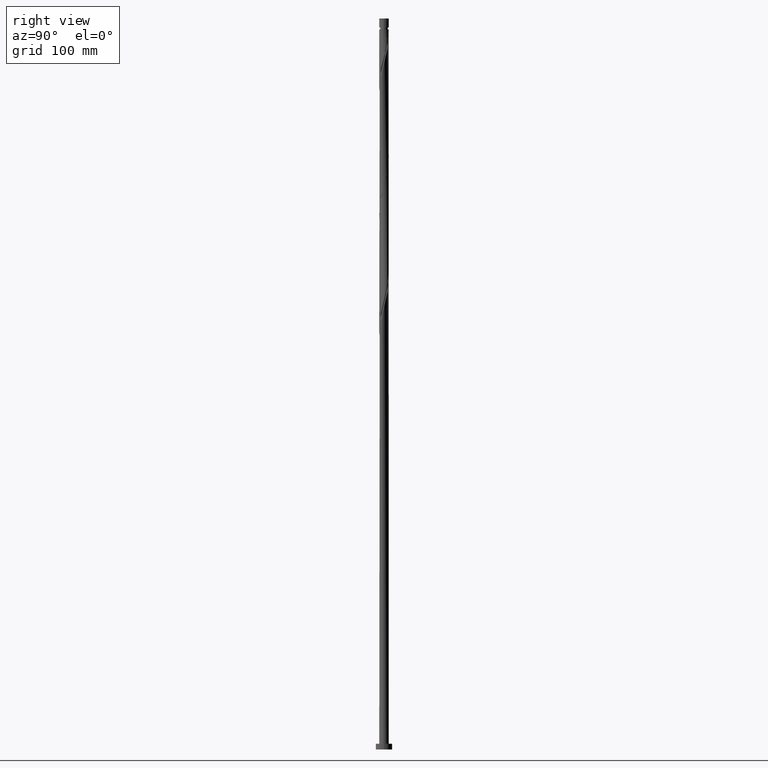
[diagram: clean part render]
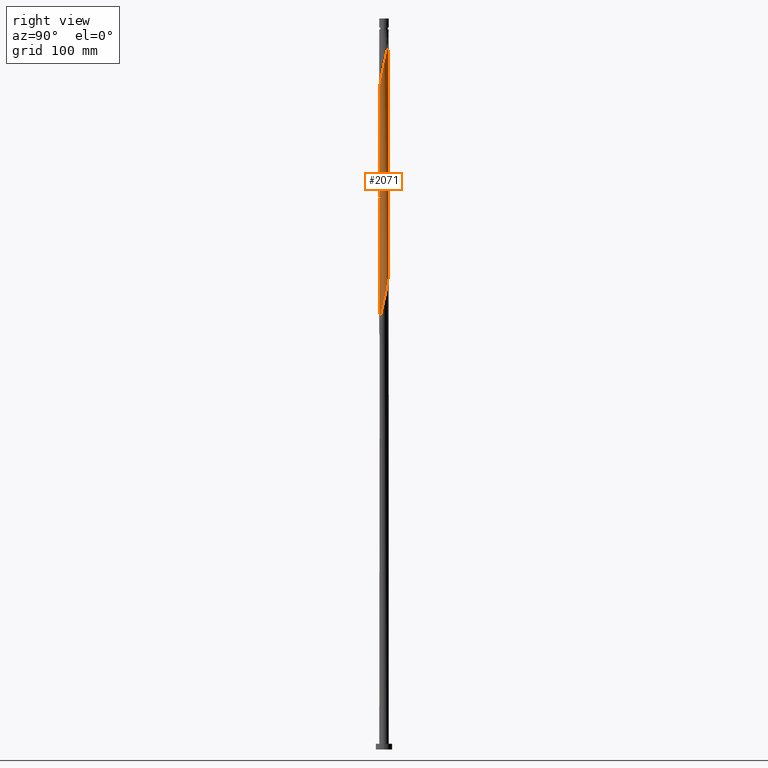
[diagram: same view with one face highlighted and labeled with its STEP entity id]
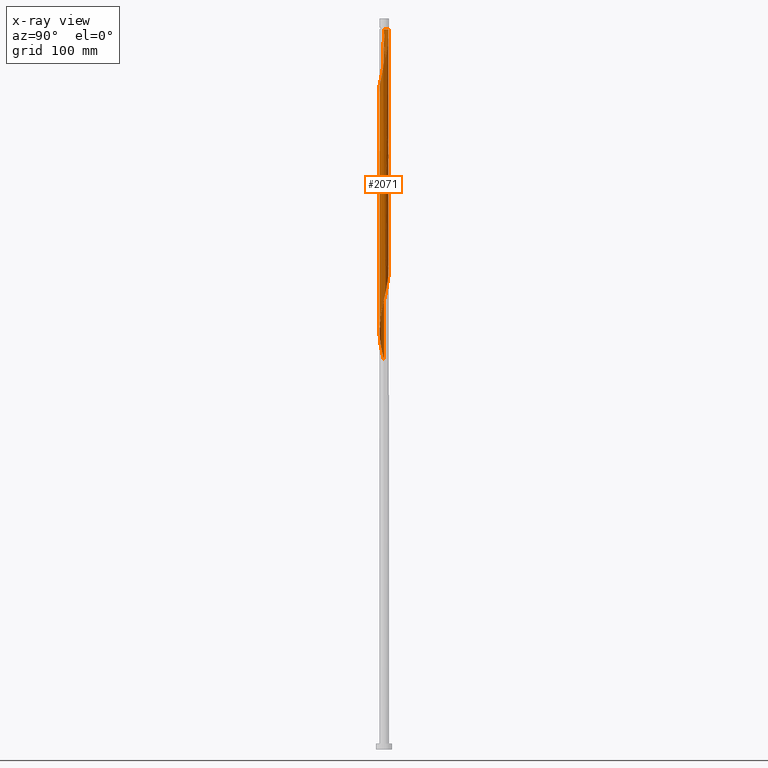
[diagram: x-ray of the same camera — body ghosted, the highlighted face saturated]
A machine part, right view. The second image highlights one B-rep face of the part: STEP entity #2071.
The next image is the same camera in x-ray: the body ghosted, the highlighted face saturated — about 0% of this face is hidden behind the body in this view.
In plain terms, the highlighted cylindrical surface (bore or boss wall) has radius 4.1 mm, axis along (-0, -0, -1).
Its self-contained STEP definition (entity closure, byte-faithful):
#9 = CARTESIAN_POINT ( 'NONE',  ( -4.076140724330355347, 0.4416749884876990384, 543.3407135028924131 ) ) ;
#14 = CARTESIAN_POINT ( 'NONE',  ( -0.8158896984274351949, -4.017999999999999794, 358.0465958558335160 ) ) ;
#21 = CARTESIAN_POINT ( 'NONE',  ( 0.8158896984274346398, -4.018000000000002458, 568.0465958558332886 ) ) ;
#22 = CARTESIAN_POINT ( 'NONE',  ( 3.309858858778214064, 2.419676493865940969, 503.1936546793629645 ) ) ;
#24 = CARTESIAN_POINT ( 'NONE',  ( -0.06369206327640099252, -4.099505253207463618, 361.1348311499511397 ) ) ;
#30 = CARTESIAN_POINT ( 'NONE',  ( -0.8158896984275280095, 4.018000000001106464, 620.5465958558334023 ) ) ;
#31 = CARTESIAN_POINT ( 'NONE',  ( -3.233092771992578829, 2.521331221337121953, 534.0760076205392579 ) ) ;
#42 = CARTESIAN_POINT ( 'NONE',  ( 2.999457027639615081, 2.820921386228707917, 603.5613017381863301 ) ) ;
#46 = VERTEX_POINT ( 'NONE', #1149 ) ;
#60 = VECTOR ( 'NONE', #74, 1000.000000000000000 ) ;
#74 = DIRECTION ( 'NONE',  ( -0.000000000000000000, -0.000000000000000000, -1.000000000000000000 ) ) ;
#105 = CARTESIAN_POINT ( 'NONE',  ( -0.06369206327640099252, -4.099505253207463618, 466.1348311499511397 ) ) ;
#119 = CARTESIAN_POINT ( 'NONE',  ( 0.3161830412741589158, -4.105407192027332286, 467.6789487970097525 ) ) ;
#131 = CARTESIAN_POINT ( 'NONE',  ( 3.233092771992579717, -2.521331221337121509, 481.5760076205393716 ) ) ;
#143 = CARTESIAN_POINT ( 'NONE',  ( -1.777876039821439491, 3.713959708312405184, 421.3554193852451135 ) ) ;
#150 = CARTESIAN_POINT ( 'NONE',  ( 3.085642812130466428, 2.726380084266813331, 399.7377723264215206 ) ) ;
#163 = CARTESIAN_POINT ( 'NONE',  ( -4.058720558200563211, -0.6936334466987869041, 337.9730664440687065 ) ) ;
#168 = CARTESIAN_POINT ( 'NONE',  ( 2.714749827474608246, 3.072480003877426480, 605.1054193852453409 ) ) ;
#174 = CARTESIAN_POINT ( 'NONE',  ( 2.714749827474602917, -3.072480003877425148, 373.4877723264216911 ) ) ;
#180 = CARTESIAN_POINT ( 'NONE',  ( 2.212263500780659253, -3.451940063661843805, 574.2230664440684222 ) ) ;
#182 = CARTESIAN_POINT ( 'NONE',  ( -2.714749827474603361, 3.072480003877424259, 530.9877723264218048 ) ) ;
#186 = CARTESIAN_POINT ( 'NONE',  ( -3.960439437336699342, -1.060622205683138253, 339.5171840911276604 ) ) ;
#191 = CARTESIAN_POINT ( 'NONE',  ( 1.777876039821443266, 3.713959708312408292, 609.7377723264216911 ) ) ;
#193 = CARTESIAN_POINT ( 'NONE',  ( -4.035213509443178914, 0.8193850505997777312, 541.7965958558335160 ) ) ;
#196 = CARTESIAN_POINT ( 'NONE',  ( -4.100000000000000533, -0.1576498703394996204, 335.7882103825872377 ) ) ;
#200 = ORIENTED_EDGE ( 'NONE', *, *, #986, .T. ) ;
#205 = CARTESIAN_POINT ( 'NONE',  ( 0.06369206327640004883, 4.099505253207465394, 518.6348311499509691 ) ) ;
#207 = AXIS2_PLACEMENT_3D ( 'NONE', #523, #1178, #1205 ) ;
#241 = ORIENTED_EDGE ( 'NONE', *, *, #795, .F. ) ;
#257 = CARTESIAN_POINT ( 'NONE',  ( -3.925579116376539890, 1.183143525134793261, 435.2524782087746757 ) ) ;
#266 = CARTESIAN_POINT ( 'NONE',  ( 2.999457027639609752, -2.820921386228706140, 480.0318899734804745 ) ) ;
#275 = CARTESIAN_POINT ( 'NONE',  ( 2.532132853688507268, 3.246943661231347367, 402.8260076205392011 ) ) ;
#289 = CARTESIAN_POINT ( 'NONE',  ( -2.430042627309594305, 3.324038621526141490, 424.4436546793627940 ) ) ;
#296 = CARTESIAN_POINT ( 'NONE',  ( 1.188212229027910238, 3.942396685612402862, 409.0024782087745052 ) ) ;
#309 = CARTESIAN_POINT ( 'NONE',  ( -3.085642812130465984, -2.726380084266813775, 347.2377723264215774 ) ) ;
#315 = CARTESIAN_POINT ( 'NONE',  ( 4.058720558200564099, 0.6936334466987857938, 495.4730664440687633 ) ) ;
#325 = CARTESIAN_POINT ( 'NONE',  ( -4.035213509443182467, -0.8193850505997778422, 541.7965958558332886 ) ) ;
#330 = CARTESIAN_POINT ( 'NONE',  ( 2.999457027639609752, -2.820921386228706140, 375.0318899734804745 ) ) ;
#335 = CARTESIAN_POINT ( 'NONE',  ( 4.035213509443182467, 0.8193850505997775091, 594.2965958558332886 ) ) ;
#336 = CARTESIAN_POINT ( 'NONE',  ( 0.4435671678269590412, 4.093603314387594061, 517.0907135028920720 ) ) ;
#344 = CARTESIAN_POINT ( 'NONE',  ( -2.103959333565521117, -3.518999164919276890, 555.6936546793626803 ) ) ;
#345 = CARTESIAN_POINT ( 'NONE',  ( -3.815944723309901310, 1.546901999669808125, 538.7083605617159492 ) ) ;
#357 = CARTESIAN_POINT ( 'NONE',  ( 2.808887832909489291, 2.986661872749078572, 506.2818899734806450 ) ) ;
#359 = ORIENTED_EDGE ( 'NONE', *, *, #1155, .T. ) ;
#365 = LINE ( 'NONE', #699, #60 ) ;
#395 = CIRCLE ( 'NONE', #207, 4.099999999999935696 ) ;
#399 = CARTESIAN_POINT ( 'NONE',  ( 4.099999999999999645, 5.079172767588905365E-15, 492.6448046305274033 ) ) ;
#407 = CARTESIAN_POINT ( 'NONE',  ( 3.534074905425962587, 2.112972903465069052, 396.6495370323040675 ) ) ;
#415 = CARTESIAN_POINT ( 'NONE',  ( -4.100000000000004974, 2.181056541376401172E-15, 538.4483870811393444 ) ) ;
#417 = CARTESIAN_POINT ( 'NONE',  ( 0.6906745286993031252, -4.041406771831561606, 469.2230664440688201 ) ) ;
#427 = CARTESIAN_POINT ( 'NONE',  ( -1.188212229027910016, -3.942396685612402862, 461.5024782087745621 ) ) ;
#437 = CARTESIAN_POINT ( 'NONE',  ( 3.925579116376540778, -1.183143525134793039, 487.7524782087747326 ) ) ;
#445 = CARTESIAN_POINT ( 'NONE',  ( -4.087894248709048384, -0.3148342601615839453, 441.4289487970100367 ) ) ;
#461 = CARTESIAN_POINT ( 'NONE',  ( 3.960439437336699342, 1.060622205683139585, 392.0171840911275467 ) ) ;
#467 = CARTESIAN_POINT ( 'NONE',  ( 3.815944723309906195, 1.546901999669810568, 597.3848311499509691 ) ) ;
#468 = CARTESIAN_POINT ( 'NONE',  ( -3.466728516345546129, 2.221741056445537765, 535.6201252675979276 ) ) ;
#477 = CARTESIAN_POINT ( 'NONE',  ( -3.233092771992582382, -2.521331221337123729, 549.5171840911273193 ) ) ;
#478 = CARTESIAN_POINT ( 'NONE',  ( 2.212263500780657921, 3.451940063661840252, 509.3701252675981550 ) ) ;
#480 = CARTESIAN_POINT ( 'NONE',  ( -3.309858858778215840, -2.419676493865940081, 345.6936546793628509 ) ) ;
#488 =( BOUNDED_CURVE ( )  B_SPLINE_CURVE ( 2, ( #415, #1062, #1772, #325, #657, #680, #1308, #1459, #477, #2069, #1630, #648, #344, #500, #973, #1608, #1761, #1450, #1643, #666, #21, #806, #796, #1153, #180, #814, #1918, #992, #1288, #1141, #1441, #1784, #1297, #1130, #1938, #836, #489, #335, #1960, #467, #1949, #825, #982, #42, #168, #641, #1165, #191, #511, #1482, #1618, #1470, #1280, #1122, #30 ),
 .UNSPECIFIED., .F., .T. ) 
 B_SPLINE_CURVE_WITH_KNOTS ( ( 3, 2, 2, 2, 2, 2, 2, 2, 2, 2, 2, 2, 2, 2, 2, 2, 2, 2, 2, 2, 2, 2, 2, 2, 2, 2, 2, 3 ),
 ( 0.5545293573162903833, 0.5588235294117647189, 0.5661764705882352811, 0.5735294117647058432, 0.5808823529411764053, 0.5882352941176470784, 0.5955882352941176405, 0.6029411764705883137, 0.6102941176470588758, 0.6176470588235294379, 0.6250000000000000000, 0.6323529411764705621, 0.6397058823529411242, 0.6470588235294116863, 0.6544117647058822484, 0.6617647058823528106, 0.6691176470588235947, 0.6764705882352940458, 0.6838235294117647189, 0.6911764705882351700, 0.6985294117647057321, 0.7058823529411762943, 0.7132352941176469674, 0.7205882352941175295, 0.7279411764705882026, 0.7352941176470587648, 0.7426470588235293269, 0.7499999999999998890 ),
 .UNSPECIFIED. ) 
 CURVE ( )  GEOMETRIC_REPRESENTATION_ITEM ( )  RATIONAL_B_SPLINE_CURVE ( ( 0.9072066346053390129, 0.9068261157891059909, 0.9090909090909774504, 0.9052128875410084818, 0.9090909090909774504, 0.9052128875410084818, 0.9090909090909774504, 0.9052128875410084818, 0.9090909090909774504, 0.9052128875410084818, 0.9090909090909774504, 0.9052128875410084818, 0.9090909090909774504, 0.9052128875410084818, 0.9090909090909774504, 0.9052128875410084818, 0.9090909090909774504, 0.9052128875410084818, 0.9090909090909774504, 0.9052128875410084818, 0.9090909090909774504, 0.9052128875410084818, 0.9090909090909774504, 0.9052128875410084818, 0.9090909090909774504, 0.9052128875410084818, 0.9090909090909774504, 0.9052128875410084818, 0.9090909090909774504, 0.9052128875410084818, 0.9090909090909774504, 0.9052128875410084818, 0.9090909090909774504, 0.9052128875410084818, 0.9090909090909774504, 0.9052128875410084818, 0.9090909090909774504, 0.9052128875410084818, 0.9090909090909774504, 0.9052128875410084818, 0.9090909090909774504, 0.9052128875410084818, 0.9090909090909774504, 0.9052128875410084818, 0.9090909090909774504, 0.9052128875410084818, 0.9090909090909774504, 0.9052128875410084818, 0.9090909090909774504, 0.9052128875410084818, 0.9090909090909774504, 0.9052128875410084818, 0.9090909090909774504, 0.9052128875410085929, 0.9090909090909773393 ) ) 
 REPRESENTATION_ITEM ( '' )  );
#489 = CARTESIAN_POINT ( 'NONE',  ( 4.076140724330359788, 0.4416749884876989274, 592.7524782087746189 ) ) ;
#494 = CARTESIAN_POINT ( 'NONE',  ( 0.6906745286993031252, -4.041406771831561606, 364.2230664440688201 ) ) ;
#500 = CARTESIAN_POINT ( 'NONE',  ( -1.777876039821442378, -3.713959708312408736, 557.2377723264215774 ) ) ;
#501 = CARTESIAN_POINT ( 'NONE',  ( -1.421521027972942885, 3.845683029974097611, 524.8113017381864438 ) ) ;
#511 = CARTESIAN_POINT ( 'NONE',  ( 1.421521027972946438, 3.845683029974098943, 611.2818899734803608 ) ) ;
#512 = CARTESIAN_POINT ( 'NONE',  ( -2.430042627309594305, 3.324038621526141490, 529.4436546793627940 ) ) ;
#516 = CARTESIAN_POINT ( 'NONE',  ( 0.000000000000000000, 0.000000000000000000, 630.0000000000000000 ) ) ;
#523 = CARTESIAN_POINT ( 'NONE',  ( 0.000000000000000000, 0.000000000000000000, 620.5465958558334023 ) ) ;
#527 = CARTESIAN_POINT ( 'NONE',  ( -4.100000000000004974, 2.181056541376401172E-15, 538.4483870811393444 ) ) ;
#531 = LINE ( 'NONE', #1175, #563 ) ;
#545 = VERTEX_POINT ( 'NONE', #851 ) ;
#552 = CARTESIAN_POINT ( 'NONE',  ( -4.099999999999999645, -1.942036646431052562E-15, 545.1448046305273465 ) ) ;
#563 = VECTOR ( 'NONE', #701, 1000.000000000000000 ) ;
#566 = CARTESIAN_POINT ( 'NONE',  ( -0.8158896984274351949, -4.017999999999999794, 463.0465958558335728 ) ) ;
#578 = CARTESIAN_POINT ( 'NONE',  ( 3.815944723309901754, -1.546901999669807015, 486.2083605617157218 ) ) ;
#593 = CARTESIAN_POINT ( 'NONE',  ( -3.815944723309901310, 1.546901999669808125, 433.7083605617157218 ) ) ;
#604 = CARTESIAN_POINT ( 'NONE',  ( 0.8158896984274356390, 4.017999999999999794, 410.5465958558335728 ) ) ;
#616 = CARTESIAN_POINT ( 'NONE',  ( -3.641336619827724164, 1.884321528057673278, 432.1642429146570521 ) ) ;
#618 = EDGE_CURVE ( 'NONE', #1069, #734, #365, .T. ) ;
#627 = CARTESIAN_POINT ( 'NONE',  ( 3.862158316472835917, 1.427610964667490601, 393.5613017381862733 ) ) ;
#634 = CARTESIAN_POINT ( 'NONE',  ( -2.532132853688509044, -3.246943661231345590, 350.3260076205392011 ) ) ;
#641 = CARTESIAN_POINT ( 'NONE',  ( 2.430042627309597414, 3.324038621526145931, 606.6495370323038969 ) ) ;
#648 = CARTESIAN_POINT ( 'NONE',  ( -2.430042627309597858, -3.324038621526145487, 554.1495370323040106 ) ) ;
#650 = CARTESIAN_POINT ( 'NONE',  ( 1.777876039821438603, -3.713959708312405184, 368.8554193852451704 ) ) ;
#657 = CARTESIAN_POINT ( 'NONE',  ( -3.925579116376544775, -1.183143525134793927, 543.3407135028921857 ) ) ;
#658 = CARTESIAN_POINT ( 'NONE',  ( -4.099999999999935696, 0.000000000000000000, 620.5465958558334023 ) ) ;
#661 = CARTESIAN_POINT ( 'NONE',  ( -3.698116610949400584, -1.770291934066278827, 342.6054193852452272 ) ) ;
#666 = CARTESIAN_POINT ( 'NONE',  ( 0.4435671678269600404, -4.093603314387599390, 566.5024782087745052 ) ) ;
#668 = CARTESIAN_POINT ( 'NONE',  ( -3.641336619827724164, 1.884321528057673278, 537.1642429146570521 ) ) ;
#680 = CARTESIAN_POINT ( 'NONE',  ( -3.815944723309906195, -1.546901999669810346, 544.8848311499508554 ) ) ;
#682 = CARTESIAN_POINT ( 'NONE',  ( -0.6906745286993022370, 4.041406771831561606, 521.7230664440687633 ) ) ;
#699 = CARTESIAN_POINT ( 'NONE',  ( -4.099999999999999645, 0.000000000000000000, 630.0000000000000000 ) ) ;
#701 = DIRECTION ( 'NONE',  ( -0.000000000000000000, -0.000000000000000000, -1.000000000000000000 ) ) ;
#734 = VERTEX_POINT ( 'NONE', #552 ) ;
#743 = CARTESIAN_POINT ( 'NONE',  ( -1.892394147872807908, -3.656936466092332694, 458.4142429146568816 ) ) ;
#752 = CARTESIAN_POINT ( 'NONE',  ( -1.540303188450358851, -3.799666575852368666, 459.9583605617157787 ) ) ;
#762 = CARTESIAN_POINT ( 'NONE',  ( -4.058720558200563211, -0.6936334466987869041, 442.9730664440686496 ) ) ;
#772 = CARTESIAN_POINT ( 'NONE',  ( -0.3161830412741589158, 4.105407192027332286, 415.1789487970098662 ) ) ;
#783 = CARTESIAN_POINT ( 'NONE',  ( 3.466728516345546129, -2.221741056445537765, 483.1201252675979845 ) ) ;
#795 = EDGE_CURVE ( 'NONE', #1913, #1398, #488, .T. ) ;
#796 = CARTESIAN_POINT ( 'NONE',  ( 1.540303188450359073, -3.799666575852372663, 571.1348311499510828 ) ) ;
#799 = CARTESIAN_POINT ( 'NONE',  ( -4.099999999999999645, -5.273376432232011292E-15, 335.1448046305274602 ) ) ;
#806 = CARTESIAN_POINT ( 'NONE',  ( 1.188212229027912237, -3.942396685612406415, 569.5907135028922994 ) ) ;
#807 = CARTESIAN_POINT ( 'NONE',  ( 4.087894248709048384, 0.3148342601615834457, 493.9289487970099799 ) ) ;
#814 = CARTESIAN_POINT ( 'NONE',  ( 2.532132853688510377, -3.246943661231350475, 575.7671840911272056 ) ) ;
#816 = CARTESIAN_POINT ( 'NONE',  ( 4.099999999999999645, 5.079172767588905365E-15, 492.6448046305274033 ) ) ;
#825 = CARTESIAN_POINT ( 'NONE',  ( 3.466728516345551458, 2.221741056445539542, 600.4730664440686496 ) ) ;
#827 = CARTESIAN_POINT ( 'NONE',  ( 1.892394147872808352, 3.656936466092332694, 510.9142429146569384 ) ) ;
#836 = CARTESIAN_POINT ( 'NONE',  ( 4.117067939217537109, 0.06396492637562069261, 591.2083605617157218 ) ) ;
#837 = CARTESIAN_POINT ( 'NONE',  ( -4.099999999999999645, -1.942036646431052562E-15, 545.1448046305273465 ) ) ;
#851 = CARTESIAN_POINT ( 'NONE',  ( 4.099999999999999645, 5.079172767588905365E-15, 492.6448046305274033 ) ) ;
#899 = CARTESIAN_POINT ( 'NONE',  ( -2.103959333565517564, 3.518999164919273781, 422.8995370323041243 ) ) ;
#911 = CARTESIAN_POINT ( 'NONE',  ( -0.4435671678269588192, -4.093603314387594061, 464.5907135028921857 ) ) ;
#922 =( BOUNDED_CURVE ( )  B_SPLINE_CURVE ( 2, ( #399, #2028, #1097, #1052, #437, #578, #1852, #783, #131, #266, #2010, #1548, #1863, #924, #1247, #1226, #417, #119, #105, #911, #566, #427, #752, #743, #1698, #1078, #1065, #1732, #1087, #1405, #1381, #1709, #1883, #762, #445, #933, #2020, #1392, #257, #593, #616, #1892, #1570, #2038, #1237, #289, #899, #143, #1873, #1721, #1740, #772, #2049, #1417, #604, #296, #1256, #942, #1560, #275, #1577, #150, #1214, #407, #1536, #627, #461, #1434, #1425, #987, #1911, #1116, #1624, #959, #1465, #1753, #1301, #330, #174, #1585, #1291, #650, #2065, #1592, #494, #975, #24, #1932, #14, #1944, #1134, #1779, #967, #634, #1273, #309, #480, #1453, #661, #1613, #186, #163, #2059, #196, #799 ),
 .UNSPECIFIED., .F., .T. ) 
 B_SPLINE_CURVE_WITH_KNOTS ( ( 3, 2, 2, 2, 2, 2, 2, 2, 2, 2, 2, 2, 2, 2, 2, 2, 2, 2, 2, 2, 2, 2, 2, 2, 2, 2, 2, 2, 2, 2, 2, 2, 2, 2, 2, 2, 2, 2, 2, 2, 2, 2, 2, 2, 2, 2, 2, 2, 2, 2, 2, 2, 3 ),
 ( 0.5545293573162906053, 0.5588235294117647189, 0.5661764705882352811, 0.5735294117647058432, 0.5808823529411765163, 0.5882352941176470784, 0.5955882352941176405, 0.6029411764705882026, 0.6102941176470588758, 0.6176470588235294379, 0.6250000000000000000, 0.6323529411764705621, 0.6397058823529411242, 0.6470588235294117974, 0.6544117647058823595, 0.6617647058823529216, 0.6691176470588234837, 0.6764705882352941568, 0.6838235294117647189, 0.6911764705882352811, 0.6985294117647058432, 0.7058823529411765163, 0.7132352941176470784, 0.7205882352941176405, 0.7279411764705882026, 0.7352941176470588758, 0.7426470588235294379, 0.7500000000000000000, 0.7573529411764705621, 0.7647058823529411242, 0.7720588235294117974, 0.7794117647058823595, 0.7867647058823529216, 0.7941176470588234837, 0.8014705882352941568, 0.8088235294117647189, 0.8161764705882352811, 0.8235294117647058432, 0.8308823529411765163, 0.8382352941176470784, 0.8455882352941176405, 0.8529411764705882026, 0.8602941176470588758, 0.8676470588235294379, 0.8750000000000000000, 0.8823529411764705621, 0.8897058823529411242, 0.8970588235294117974, 0.9044117647058823595, 0.9117647058823529216, 0.9191176470588235947, 0.9264705882352941568, 0.9295293573162903833 ),
 .UNSPECIFIED. ) 
 CURVE ( )  GEOMETRIC_REPRESENTATION_ITEM ( )  RATIONAL_B_SPLINE_CURVE ( ( 0.9072066346053341279, 0.9068261157891013280, 0.9090909090909725654, 0.9052128875410037079, 0.9090909090909725654, 0.9052128875410037079, 0.9090909090909725654, 0.9052128875410037079, 0.9090909090909725654, 0.9052128875410037079, 0.9090909090909725654, 0.9052128875410037079, 0.9090909090909725654, 0.9052128875410037079, 0.9090909090909725654, 0.9052128875410037079, 0.9090909090909725654, 0.9052128875410037079, 0.9090909090909725654, 0.9052128875410037079, 0.9090909090909725654, 0.9052128875410037079, 0.9090909090909725654, 0.9052128875410037079, 0.9090909090909725654, 0.9052128875410037079, 0.9090909090909725654, 0.9052128875410037079, 0.9090909090909725654, 0.9052128875410037079, 0.9090909090909725654, 0.9052128875410037079, 0.9090909090909725654, 0.9052128875410037079, 0.9090909090909725654, 0.9052128875410037079, 0.9090909090909725654, 0.9052128875410037079, 0.9090909090909725654, 0.9052128875410037079, 0.9090909090909725654, 0.9052128875410037079, 0.9090909090909725654, 0.9052128875410037079, 0.9090909090909725654, 0.9052128875410037079, 0.9090909090909725654, 0.9052128875410037079, 0.9090909090909725654, 0.9052128875410037079, 0.9090909090909725654, 0.9052128875410037079, 0.9090909090909725654, 0.9052128875410037079, 0.9090909090909725654, 0.9052128875410037079, 0.9090909090909725654, 0.9052128875410037079, 0.9090909090909725654, 0.9052128875410037079, 0.9090909090909725654, 0.9052128875410037079, 0.9090909090909725654, 0.9052128875410037079, 0.9090909090909725654, 0.9052128875410037079, 0.9090909090909725654, 0.9052128875410037079, 0.9090909090909725654, 0.9052128875410037079, 0.9090909090909725654, 0.9052128875410037079, 0.9090909090909725654, 0.9052128875410037079, 0.9090909090909725654, 0.9052128875410037079, 0.9090909090909725654, 0.9052128875410037079, 0.9090909090909725654, 0.9052128875410037079, 0.9090909090909725654, 0.9052128875410037079, 0.9090909090909725654, 0.9052128875410037079, 0.9090909090909725654, 0.9052128875410037079, 0.9090909090909725654, 0.9052128875410037079, 0.9090909090909725654, 0.9052128875410037079, 0.9090909090909725654, 0.9052128875410037079, 0.9090909090909725654, 0.9052128875410037079, 0.9090909090909725654, 0.9052128875410037079, 0.9090909090909725654, 0.9052128875410037079, 0.9090909090909725654, 0.9052128875410037079, 0.9090909090909725654, 0.9052128875410037079, 0.9090909090909725654, 0.9074776808428749453, 0.9072066346053340169 ) ) 
 REPRESENTATION_ITEM ( '' )  );
#924 = CARTESIAN_POINT ( 'NONE',  ( 1.777876039821438603, -3.713959708312405184, 473.8554193852451135 ) ) ;
#933 = CARTESIAN_POINT ( 'NONE',  ( -4.117067939217530892, 0.06396492637561938810, 439.8848311499510260 ) ) ;
#942 = CARTESIAN_POINT ( 'NONE',  ( 1.892394147872808352, 3.656936466092332694, 405.9142429146570521 ) ) ;
#959 = CARTESIAN_POINT ( 'NONE',  ( 3.815944723309901754, -1.546901999669807015, 381.2083605617158355 ) ) ;
#966 = LINE ( 'NONE', #1154, #1777 ) ;
#967 = CARTESIAN_POINT ( 'NONE',  ( -2.212263500780657477, -3.451940063661840252, 351.8701252675981550 ) ) ;
#973 = CARTESIAN_POINT ( 'NONE',  ( -1.421521027972944440, -3.845683029974101164, 558.7818899734805882 ) ) ;
#974 = DIRECTION ( 'NONE',  ( -0.000000000000000000, -0.000000000000000000, -1.000000000000000000 ) ) ;
#975 = CARTESIAN_POINT ( 'NONE',  ( 0.3161830412741589158, -4.105407192027332286, 362.6789487970096957 ) ) ;
#982 = CARTESIAN_POINT ( 'NONE',  ( 3.233092771992581937, 2.521331221337125061, 602.0171840911274330 ) ) ;
#986 = EDGE_CURVE ( 'NONE', #1913, #1293, #966, .T. ) ;
#987 = CARTESIAN_POINT ( 'NONE',  ( 4.117067939217530892, -0.06396492637561895789, 387.3848311499509691 ) ) ;
#992 = CARTESIAN_POINT ( 'NONE',  ( 3.085642812130469093, -2.726380084266818216, 578.8554193852449998 ) ) ;
#1001 = CARTESIAN_POINT ( 'NONE',  ( 3.534074905425962587, 2.112972903465069052, 501.6495370323039538 ) ) ;
#1005 = DIRECTION ( 'NONE',  ( -1.000000000000000000, 0.000000000000000000, 0.000000000000000000 ) ) ;
#1024 = EDGE_CURVE ( 'NONE', #734, #545, #1989, .T. ) ;
#1044 = ORIENTED_EDGE ( 'NONE', *, *, #1611, .F. ) ;
#1052 = CARTESIAN_POINT ( 'NONE',  ( 4.035213509443178914, -0.8193850505997782863, 489.2965958558334023 ) ) ;
#1062 = CARTESIAN_POINT ( 'NONE',  ( -4.100000000000005862, -0.2214819330849831791, 539.3523063131520985 ) ) ;
#1065 = CARTESIAN_POINT ( 'NONE',  ( -2.808887832909487514, -2.986661872749081237, 453.7818899734807019 ) ) ;
#1069 = VERTEX_POINT ( 'NONE', #658 ) ;
#1078 = CARTESIAN_POINT ( 'NONE',  ( -2.532132853688509044, -3.246943661231345590, 455.3260076205392579 ) ) ;
#1087 = CARTESIAN_POINT ( 'NONE',  ( -3.309858858778215840, -2.419676493865940081, 450.6936546793630214 ) ) ;
#1097 = CARTESIAN_POINT ( 'NONE',  ( 4.076140724330355347, -0.4416749884877005372, 490.8407135028923562 ) ) ;
#1116 = CARTESIAN_POINT ( 'NONE',  ( 4.035213509443178914, -0.8193850505997782863, 384.2965958558334023 ) ) ;
#1118 = ORIENTED_EDGE ( 'NONE', *, *, #618, .F. ) ;
#1122 = CARTESIAN_POINT ( 'NONE',  ( -0.4435671678269537677, 4.093603314387600278, 619.0024782087742778 ) ) ;
#1123 = CARTESIAN_POINT ( 'NONE',  ( 3.960439437336699342, 1.060622205683139585, 497.0171840911276036 ) ) ;
#1130 = CARTESIAN_POINT ( 'NONE',  ( 4.058720558200568540, -0.6936334466987885694, 588.1201252675979276 ) ) ;
#1134 = CARTESIAN_POINT ( 'NONE',  ( -1.540303188450358851, -3.799666575852368666, 354.9583605617159492 ) ) ;
#1141 = CARTESIAN_POINT ( 'NONE',  ( 3.534074905425966584, -2.112972903465071273, 581.9436546793625666 ) ) ;
#1142 = CARTESIAN_POINT ( 'NONE',  ( 3.085642812130466428, 2.726380084266813331, 504.7377723264214637 ) ) ;
#1149 = CARTESIAN_POINT ( 'NONE',  ( 4.099999999999999645, 5.021051876504147385E-16, 620.5465958558334023 ) ) ;
#1153 = CARTESIAN_POINT ( 'NONE',  ( 1.892394147872808352, -3.656936466092338467, 572.6789487970099799 ) ) ;
#1154 = CARTESIAN_POINT ( 'NONE',  ( -4.099999999999999645, 0.000000000000000000, 630.0000000000000000 ) ) ;
#1155 = EDGE_CURVE ( 'NONE', #1069, #1398, #395, .T. ) ;
#1165 = CARTESIAN_POINT ( 'NONE',  ( 2.103959333565520229, 3.518999164919276890, 608.1936546793627940 ) ) ;
#1166 = CARTESIAN_POINT ( 'NONE',  ( 1.540303188450357741, 3.799666575852368666, 512.4583605617159492 ) ) ;
#1175 = CARTESIAN_POINT ( 'NONE',  ( 4.099999999999999645, 5.021051876504147385E-16, 630.0000000000000000 ) ) ;
#1178 = DIRECTION ( 'NONE',  ( -0.000000000000000000, -0.000000000000000000, -1.000000000000000000 ) ) ;
#1191 = CYLINDRICAL_SURFACE ( 'NONE', #1677, 4.099999999999999645 ) ;
#1205 = DIRECTION ( 'NONE',  ( -1.000000000000000000, 0.000000000000000000, 0.000000000000000000 ) ) ;
#1214 = CARTESIAN_POINT ( 'NONE',  ( 3.309858858778214064, 2.419676493865940969, 398.1936546793627940 ) ) ;
#1226 = CARTESIAN_POINT ( 'NONE',  ( 1.065166016124445170, -3.977406351635786486, 470.7671840911274899 ) ) ;
#1237 = CARTESIAN_POINT ( 'NONE',  ( -2.714749827474603361, 3.072480003877424259, 425.9877723264216911 ) ) ;
#1247 = CARTESIAN_POINT ( 'NONE',  ( 1.421521027972943330, -3.845683029974096723, 472.3113017381864438 ) ) ;
#1256 = CARTESIAN_POINT ( 'NONE',  ( 1.540303188450357741, 3.799666575852368666, 407.4583605617158355 ) ) ;
#1273 = CARTESIAN_POINT ( 'NONE',  ( -2.808887832909487514, -2.986661872749081237, 348.7818899734805882 ) ) ;
#1277 = ORIENTED_EDGE ( 'NONE', *, *, #1681, .F. ) ;
#1280 = CARTESIAN_POINT ( 'NONE',  ( -0.06369206327640078436, 4.099505253207468947, 617.4583605617158355 ) ) ;
#1281 = CARTESIAN_POINT ( 'NONE',  ( 3.862158316472835917, 1.427610964667490601, 498.5613017381863301 ) ) ;
#1288 = CARTESIAN_POINT ( 'NONE',  ( 3.309858858778218504, -2.419676493865943190, 580.3995370323038969 ) ) ;
#1289 = CARTESIAN_POINT ( 'NONE',  ( -2.999457027639610640, 2.820921386228705252, 532.5318899734803608 ) ) ;
#1291 = CARTESIAN_POINT ( 'NONE',  ( 2.103959333565517564, -3.518999164919273781, 370.3995370323041243 ) ) ;
#1293 = VERTEX_POINT ( 'NONE', #2052 ) ;
#1297 = CARTESIAN_POINT ( 'NONE',  ( 3.960439437336703783, -1.060622205683139141, 586.5760076205392579 ) ) ;
#1301 = CARTESIAN_POINT ( 'NONE',  ( 3.233092771992579717, -2.521331221337121509, 376.5760076205393148 ) ) ;
#1308 = CARTESIAN_POINT ( 'NONE',  ( -3.641336619827728605, -1.884321528057675277, 546.4289487970098662 ) ) ;
#1381 = CARTESIAN_POINT ( 'NONE',  ( -3.698116610949400584, -1.770291934066278827, 447.6054193852452840 ) ) ;
#1392 = CARTESIAN_POINT ( 'NONE',  ( -4.035213509443178914, 0.8193850505997777312, 436.7965958558334592 ) ) ;
#1398 = VERTEX_POINT ( 'NONE', #1877 ) ;
#1405 = CARTESIAN_POINT ( 'NONE',  ( -3.534074905425963475, -2.112972903465068608, 449.1495370323038969 ) ) ;
#1417 = CARTESIAN_POINT ( 'NONE',  ( 0.4435671678269590412, 4.093603314387594061, 412.0907135028921857 ) ) ;
#1425 = CARTESIAN_POINT ( 'NONE',  ( 4.087894248709048384, 0.3148342601615834457, 388.9289487970100367 ) ) ;
#1434 = CARTESIAN_POINT ( 'NONE',  ( 4.058720558200564099, 0.6936334466987857938, 390.4730664440687065 ) ) ;
#1441 = CARTESIAN_POINT ( 'NONE',  ( 3.698116610949403249, -1.770291934066282158, 583.4877723264215774 ) ) ;
#1442 = CARTESIAN_POINT ( 'NONE',  ( 1.188212229027910238, 3.942396685612402862, 514.0024782087745052 ) ) ;
#1450 = CARTESIAN_POINT ( 'NONE',  ( -0.3161830412741608032, -4.105407192027338503, 563.4142429146570521 ) ) ;
#1453 = CARTESIAN_POINT ( 'NONE',  ( -3.534074905425963475, -2.112972903465068608, 344.1495370323040106 ) ) ;
#1459 = CARTESIAN_POINT ( 'NONE',  ( -3.466728516345550570, -2.221741056445539986, 547.9730664440687633 ) ) ;
#1465 = CARTESIAN_POINT ( 'NONE',  ( 3.641336619827724164, -1.884321528057674611, 379.6642429146570521 ) ) ;
#1470 = CARTESIAN_POINT ( 'NONE',  ( 0.3161830412741613583, 4.105407192027338503, 615.9142429146568247 ) ) ;
#1471 = CARTESIAN_POINT ( 'NONE',  ( -1.065166016124445614, 3.977406351635788262, 523.2671840911275467 ) ) ;
#1482 = CARTESIAN_POINT ( 'NONE',  ( 1.065166016124446946, 3.977406351635793591, 612.8260076205391442 ) ) ;
#1483 = CARTESIAN_POINT ( 'NONE',  ( -1.777876039821439491, 3.713959708312405184, 526.3554193852452272 ) ) ;
#1536 = CARTESIAN_POINT ( 'NONE',  ( 3.698116610949400584, 1.770291934066277939, 395.1054193852451704 ) ) ;
#1548 = CARTESIAN_POINT ( 'NONE',  ( 2.430042627309594305, -3.324038621526141046, 476.9436546793627940 ) ) ;
#1560 = CARTESIAN_POINT ( 'NONE',  ( 2.212263500780657921, 3.451940063661840252, 404.3701252675982118 ) ) ;
#1570 = CARTESIAN_POINT ( 'NONE',  ( -3.233092771992578829, 2.521331221337121953, 429.0760076205393148 ) ) ;
#1577 = CARTESIAN_POINT ( 'NONE',  ( 2.808887832909489291, 2.986661872749078572, 401.2818899734806450 ) ) ;
#1585 = CARTESIAN_POINT ( 'NONE',  ( 2.430042627309594305, -3.324038621526141046, 371.9436546793627940 ) ) ;
#1592 = CARTESIAN_POINT ( 'NONE',  ( 1.065166016124445170, -3.977406351635786486, 365.7671840911275467 ) ) ;
#1600 = CARTESIAN_POINT ( 'NONE',  ( 4.100000000000000533, 0.1576498703394880740, 493.2882103825871241 ) ) ;
#1608 = CARTESIAN_POINT ( 'NONE',  ( -1.065166016124447834, -3.977406351635792703, 560.3260076205392579 ) ) ;
#1609 = CARTESIAN_POINT ( 'NONE',  ( -4.099999999999997868, 0.2214819330850051060, 544.2408853985148198 ) ) ;
#1611 = EDGE_CURVE ( 'NONE', #46, #545, #531, .T. ) ;
#1613 = CARTESIAN_POINT ( 'NONE',  ( -3.862158316472835917, -1.427610964667490601, 341.0613017381863870 ) ) ;
#1618 = CARTESIAN_POINT ( 'NONE',  ( 0.6906745286993040134, 4.041406771831566047, 614.3701252675980413 ) ) ;
#1624 = CARTESIAN_POINT ( 'NONE',  ( 3.925579116376540778, -1.183143525134793039, 382.7524782087746757 ) ) ;
#1630 = CARTESIAN_POINT ( 'NONE',  ( -2.714749827474607358, -3.072480003877426480, 552.6054193852453409 ) ) ;
#1631 = CARTESIAN_POINT ( 'NONE',  ( -0.3161830412741589158, 4.105407192027332286, 520.1789487970097525 ) ) ;
#1643 = CARTESIAN_POINT ( 'NONE',  ( 0.06369206327639952148, -4.099505253207469835, 564.9583605617159492 ) ) ;
#1656 = ORIENTED_EDGE ( 'NONE', *, *, #1611, .T. ) ;
#1677 = AXIS2_PLACEMENT_3D ( 'NONE', #516, #1808, #1005 ) ;
#1681 = EDGE_CURVE ( 'NONE', #545, #1293, #922, .T. ) ;
#1698 = CARTESIAN_POINT ( 'NONE',  ( -2.212263500780657477, -3.451940063661840252, 456.8701252675981550 ) ) ;
#1709 = CARTESIAN_POINT ( 'NONE',  ( -3.862158316472835917, -1.427610964667490601, 446.0613017381863870 ) ) ;
#1721 = CARTESIAN_POINT ( 'NONE',  ( -1.065166016124445614, 3.977406351635788262, 418.2671840911273762 ) ) ;
#1732 = CARTESIAN_POINT ( 'NONE',  ( -3.085642812130465984, -2.726380084266813775, 452.2377723264215206 ) ) ;
#1740 = CARTESIAN_POINT ( 'NONE',  ( -0.6906745286993022370, 4.041406771831561606, 416.7230664440688770 ) ) ;
#1753 = CARTESIAN_POINT ( 'NONE',  ( 3.466728516345546129, -2.221741056445537765, 378.1201252675980413 ) ) ;
#1761 = CARTESIAN_POINT ( 'NONE',  ( -0.6906745286993036803, -4.041406771831566047, 561.8701252675980413 ) ) ;
#1772 = CARTESIAN_POINT ( 'NONE',  ( -4.076140724330358900, -0.4416749884876984833, 540.2524782087745052 ) ) ;
#1777 = VECTOR ( 'NONE', #974, 1000.000000000000000 ) ;
#1779 = CARTESIAN_POINT ( 'NONE',  ( -1.892394147872807908, -3.656936466092332694, 353.4142429146568816 ) ) ;
#1784 = CARTESIAN_POINT ( 'NONE',  ( 3.862158316472838582, -1.427610964667493265, 585.0318899734805882 ) ) ;
#1793 = CARTESIAN_POINT ( 'NONE',  ( -2.103959333565517564, 3.518999164919273781, 527.8995370323041243 ) ) ;
#1805 = CARTESIAN_POINT ( 'NONE',  ( 2.532132853688507268, 3.246943661231347367, 507.8260076205392011 ) ) ;
#1808 = DIRECTION ( 'NONE',  ( -0.000000000000000000, -0.000000000000000000, -1.000000000000000000 ) ) ;
#1852 = CARTESIAN_POINT ( 'NONE',  ( 3.641336619827724164, -1.884321528057674611, 484.6642429146571089 ) ) ;
#1856 = ORIENTED_EDGE ( 'NONE', *, *, #1024, .F. ) ;
#1863 = CARTESIAN_POINT ( 'NONE',  ( 2.103959333565517564, -3.518999164919273781, 475.3995370323040675 ) ) ;
#1873 = CARTESIAN_POINT ( 'NONE',  ( -1.421521027972942885, 3.845683029974097611, 419.8113017381864438 ) ) ;
#1877 = CARTESIAN_POINT ( 'NONE',  ( -0.8158896984275280095, 4.018000000001106464, 620.5465958558334023 ) ) ;
#1879 = EDGE_LOOP ( 'NONE', ( #1118, #359, #241, #200, #1277, #1044, #1656, #1856 ) ) ;
#1883 = CARTESIAN_POINT ( 'NONE',  ( -3.960439437336699342, -1.060622205683138253, 444.5171840911276036 ) ) ;
#1892 = CARTESIAN_POINT ( 'NONE',  ( -3.466728516345546129, 2.221741056445537765, 430.6201252675981550 ) ) ;
#1911 = CARTESIAN_POINT ( 'NONE',  ( 4.076140724330355347, -0.4416749884877005372, 385.8407135028922994 ) ) ;
#1913 = VERTEX_POINT ( 'NONE', #527 ) ;
#1918 = CARTESIAN_POINT ( 'NONE',  ( 2.808887832909490179, -2.986661872749084345, 577.3113017381864438 ) ) ;
#1929 = CARTESIAN_POINT ( 'NONE',  ( 0.8158896984274356390, 4.017999999999999794, 515.5465958558336297 ) ) ;
#1932 = CARTESIAN_POINT ( 'NONE',  ( -0.4435671678269588192, -4.093603314387594061, 359.5907135028921857 ) ) ;
#1938 = CARTESIAN_POINT ( 'NONE',  ( 4.087894248709052825, -0.3148342601615855552, 589.6642429146568247 ) ) ;
#1944 = CARTESIAN_POINT ( 'NONE',  ( -1.188212229027910016, -3.942396685612402862, 356.5024782087745621 ) ) ;
#1949 = CARTESIAN_POINT ( 'NONE',  ( 3.641336619827728605, 1.884321528057674389, 598.9289487970098662 ) ) ;
#1950 = CARTESIAN_POINT ( 'NONE',  ( -3.925579116376539890, 1.183143525134793261, 540.2524782087745052 ) ) ;
#1954 = FACE_OUTER_BOUND ( 'NONE', #1879, .T. ) ;
#1960 = CARTESIAN_POINT ( 'NONE',  ( 3.925579116376544775, 1.183143525134792373, 595.8407135028921857 ) ) ;
#1989 =( BOUNDED_CURVE ( )  B_SPLINE_CURVE ( 2, ( #837, #1609, #9, #193, #1950, #345, #668, #468, #31, #1289, #182, #512, #1793, #1483, #501, #1471, #682, #1631, #205, #336, #1929, #1442, #1166, #827, #478, #1805, #357, #1142, #22, #1001, #2070, #1281, #1123, #315, #807, #1600, #816 ),
 .UNSPECIFIED., .F., .T. ) 
 B_SPLINE_CURVE_WITH_KNOTS ( ( 3, 2, 2, 2, 2, 2, 2, 2, 2, 2, 2, 2, 2, 2, 2, 2, 2, 2, 3 ),
 ( 0.4295293573162907719, 0.4338235294117647189, 0.4411764705882352811, 0.4485294117647058987, 0.4558823529411764608, 0.4632352941176470784, 0.4705882352941176405, 0.4779411764705882582, 0.4852941176470588203, 0.4926470588235294379, 0.5000000000000000000, 0.5073529411764705621, 0.5147058823529411242, 0.5220588235294117974, 0.5294117647058823595, 0.5367647058823529216, 0.5441176470588234837, 0.5514705882352941568, 0.5545293573162906053 ),
 .UNSPECIFIED. ) 
 CURVE ( )  GEOMETRIC_REPRESENTATION_ITEM ( )  RATIONAL_B_SPLINE_CURVE ( ( 0.9072066346053341279, 0.9068261157891014390, 0.9090909090909725654, 0.9052128875410037079, 0.9090909090909725654, 0.9052128875410037079, 0.9090909090909725654, 0.9052128875410037079, 0.9090909090909725654, 0.9052128875410037079, 0.9090909090909725654, 0.9052128875410037079, 0.9090909090909725654, 0.9052128875410037079, 0.9090909090909725654, 0.9052128875410037079, 0.9090909090909725654, 0.9052128875410037079, 0.9090909090909725654, 0.9052128875410037079, 0.9090909090909725654, 0.9052128875410037079, 0.9090909090909725654, 0.9052128875410037079, 0.9090909090909725654, 0.9052128875410037079, 0.9090909090909725654, 0.9052128875410037079, 0.9090909090909725654, 0.9052128875410037079, 0.9090909090909725654, 0.9052128875410037079, 0.9090909090909725654, 0.9052128875410037079, 0.9090909090909725654, 0.9074776808428748343, 0.9072066346053341279 ) ) 
 REPRESENTATION_ITEM ( '' )  );
#2010 = CARTESIAN_POINT ( 'NONE',  ( 2.714749827474602917, -3.072480003877425148, 478.4877723264216911 ) ) ;
#2020 = CARTESIAN_POINT ( 'NONE',  ( -4.076140724330355347, 0.4416749884876990384, 438.3407135028924131 ) ) ;
#2028 = CARTESIAN_POINT ( 'NONE',  ( 4.099999999999999645, -0.2214819330849952528, 491.7408853985147630 ) ) ;
#2038 = CARTESIAN_POINT ( 'NONE',  ( -2.999457027639610640, 2.820921386228705252, 427.5318899734804177 ) ) ;
#2049 = CARTESIAN_POINT ( 'NONE',  ( 0.06369206327640004883, 4.099505253207465394, 413.6348311499511965 ) ) ;
#2052 = CARTESIAN_POINT ( 'NONE',  ( -4.099999999999999645, -5.273376432232011292E-15, 335.1448046305274602 ) ) ;
#2059 = CARTESIAN_POINT ( 'NONE',  ( -4.087894248709048384, -0.3148342601615839453, 336.4289487970099799 ) ) ;
#2065 = CARTESIAN_POINT ( 'NONE',  ( 1.421521027972943330, -3.845683029974096723, 367.3113017381863870 ) ) ;
#2069 = CARTESIAN_POINT ( 'NONE',  ( -2.999457027639614637, -2.820921386228709249, 551.0613017381862164 ) ) ;
#2070 = CARTESIAN_POINT ( 'NONE',  ( 3.698116610949400584, 1.770291934066277939, 500.1054193852452272 ) ) ;
#2071 = ADVANCED_FACE ( 'NONE', ( #1954 ), #1191, .T. ) ;